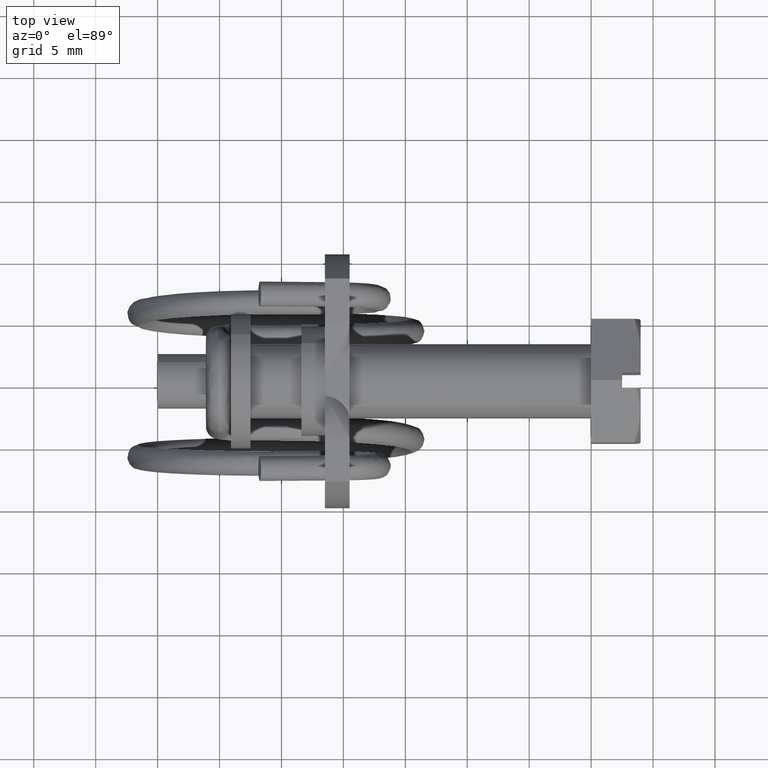
[diagram: clean part render]
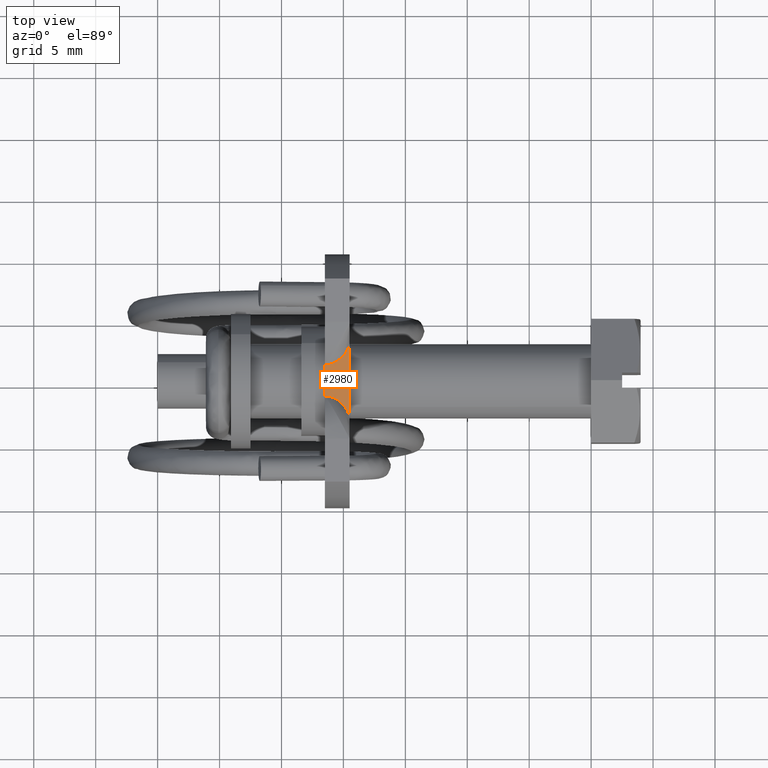
[diagram: same view with one face highlighted and labeled with its STEP entity id]
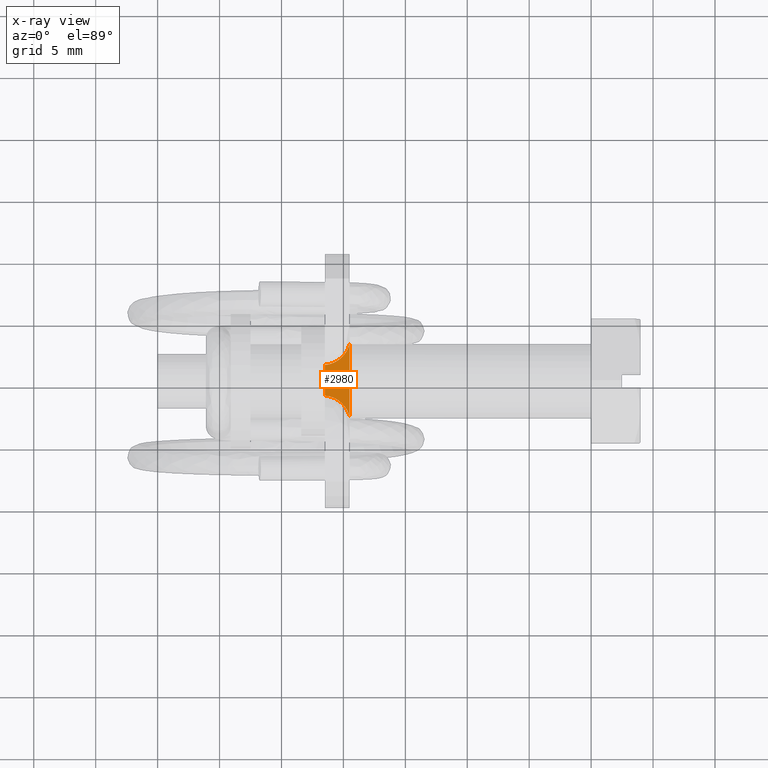
[diagram: x-ray of the same camera — body ghosted, the highlighted face saturated]
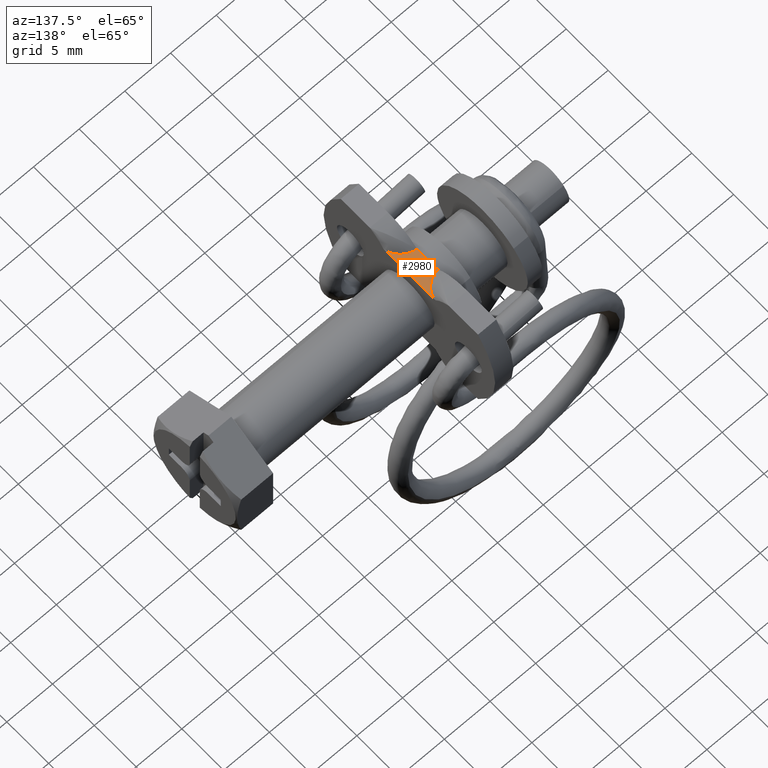
[diagram: same view with one face highlighted and labeled with its STEP entity id]
A machine part, top view. The second image highlights one B-rep face of the part: STEP entity #2980.
The next image is the same camera in x-ray: the body ghosted, the highlighted face saturated — about 0% of this face is hidden behind the body in this view.
A second angle (auxiliary view) of the same face is appended — the face is thin or edge-on in the first view.
In plain terms, the highlighted face is a freeform B-spline surface patch.
Its self-contained STEP definition (entity closure, byte-faithful):
#2890=CARTESIAN_POINT('',(-21.500000000008750,-1.249999999999660,4.700000000000100));
#2891=VERTEX_POINT('',#2890);
#2919=CARTESIAN_POINT('',(-21.599899996132368,-3.443173036461801,4.700000000000100));
#2920=CARTESIAN_POINT('',(-19.400099950240900,-3.443173036461801,4.700000000000100));
#2921=CARTESIAN_POINT('',(-21.599899996132368,3.443173204391921,4.700000000000100));
#2922=CARTESIAN_POINT('',(-19.400099950240900,3.443173204391921,4.700000000000100));
#2923=B_SPLINE_SURFACE_WITH_KNOTS('',1,1,((#2919,#2921),(#2920,#2922)),.UNSPECIFIED.,.F.,.F.,.U.,(2,2),(2,2),(0.0,2.199800045891461),(0.0,6.886346240853721),.UNSPECIFIED.);
#2924=CARTESIAN_POINT('',(-19.500000000008701,3.130441902533635,4.700000000000100));
#2925=VERTEX_POINT('',#2924);
#2926=CARTESIAN_POINT('',(-19.500000000008701,-3.130441902533505,4.700000000000100));
#2927=VERTEX_POINT('',#2926);
#2928=CARTESIAN_POINT('',(-19.500000000008701,3.130441902533635,4.700000000000100));
#2929=CARTESIAN_POINT('',(-19.500000000008701,-3.130441902533505,4.700000000000100));
#2930=QUASI_UNIFORM_CURVE('',1,(#2928,#2929),.UNSPECIFIED.,.F.,.U.);
#2931=EDGE_CURVE('',#2925,#2927,#2930,.T.);
#2932=ORIENTED_EDGE('',*,*,#2931,.F.);
#2933=CARTESIAN_POINT('',(-21.500000000008750,1.249999999999802,4.700000000000100));
#2934=VERTEX_POINT('',#2933);
#2935=CARTESIAN_POINT('',(-19.500000000008701,3.130441902533635,4.700000000000100));
#2936=CARTESIAN_POINT('',(-19.500004352341140,3.068100980815020,4.700000000000101));
#2937=CARTESIAN_POINT('',(-19.510389552563328,2.951373411741420,4.700000000000092));
#2938=CARTESIAN_POINT('',(-19.553008227554891,2.761012838152521,4.700000000000115));
#2939=CARTESIAN_POINT('',(-19.614004325583458,2.592089633766961,4.700000000000097));
#2940=CARTESIAN_POINT('',(-19.674422388716721,2.465472361373045,4.700000000000105));
#2941=CARTESIAN_POINT('',(-19.762915891787340,2.300720082233770,4.700000000000085));
#2942=CARTESIAN_POINT('',(-19.906998758128012,2.086738260976690,4.700000000000116));
#2943=CARTESIAN_POINT('',(-20.156889138341509,1.817757223498983,4.700000000000127));
#2944=CARTESIAN_POINT('',(-20.438326355290169,1.594158822725667,4.700000000000016));
#2945=CARTESIAN_POINT('',(-20.757830459293061,1.413017988398590,4.700000000000253));
#2946=CARTESIAN_POINT('',(-21.000715114073358,1.325503336942051,4.700000000000049));
#2947=CARTESIAN_POINT('',(-21.190252004341200,1.280456844201336,4.700000000000063));
#2948=CARTESIAN_POINT('',(-21.320865973943381,1.257717031589220,4.700000000000323));
#2949=CARTESIAN_POINT('',(-21.437669488401479,1.249984917915510,4.699999999999935));
#2950=CARTESIAN_POINT('',(-21.500000000008750,1.249999999999802,4.700000000000100));
#2951=B_SPLINE_CURVE_WITH_KNOTS('',3,(#2935,#2936,#2937,#2938,#2939,#2940,#2941,#2942,#2943,#2944,#2945,#2946,#2947,#2948,#2949,#2950),.UNSPECIFIED.,.F.,.U.,(4,1,1,1,1,1,1,1,1,1,1,1,1,4),(-0.000025322425239,0.186942743096417,0.350535722073370,0.584262078442476,0.724489526078991,0.771229785517811,1.145182191595193,1.495755623171349,1.869702708813643,2.220285255191857,2.594229639900803,2.640968265993716,2.804567950792364,2.991537284997472),.UNSPECIFIED.);
#2952=EDGE_CURVE('',#2925,#2934,#2951,.T.);
#2953=ORIENTED_EDGE('',*,*,#2952,.T.);
#2954=CARTESIAN_POINT('',(-21.500000000008750,1.249999999999802,4.700000000000100));
#2955=CARTESIAN_POINT('',(-21.500000000008750,-1.249999999999660,4.700000000000100));
#2956=QUASI_UNIFORM_CURVE('',1,(#2954,#2955),.UNSPECIFIED.,.F.,.U.);
#2957=EDGE_CURVE('',#2934,#2891,#2956,.T.);
#2958=ORIENTED_EDGE('',*,*,#2957,.T.);
#2959=CARTESIAN_POINT('',(-21.500000000008750,-1.249999999999660,4.700000000000100));
#2960=CARTESIAN_POINT('',(-21.429875083312869,-1.249988458692331,4.700000000000098));
#2961=CARTESIAN_POINT('',(-21.313085707697240,-1.258658066926889,4.700000000000101));
#2962=CARTESIAN_POINT('',(-21.182670497758199,-1.282259216078546,4.700000000000099));
#2963=CARTESIAN_POINT('',(-21.000711467646429,-1.325504438911733,4.700000000000109));
#2964=CARTESIAN_POINT('',(-20.757821368182849,-1.413017895104844,4.700000000000083));
#2965=CARTESIAN_POINT('',(-20.438326583051960,-1.594165695391335,4.700000000000149));
#2966=CARTESIAN_POINT('',(-20.156881586091341,-1.817756382331220,4.699999999999960));
#2967=CARTESIAN_POINT('',(-19.906997672192219,-2.086743476555350,4.700000000000321));
#2968=CARTESIAN_POINT('',(-19.762915306690569,-2.300725947239185,4.699999999999957));
#2969=CARTESIAN_POINT('',(-19.674420481246550,-2.465472791938232,4.700000000000117));
#2970=CARTESIAN_POINT('',(-19.617354690156318,-2.585063306225524,4.700000000000147));
#2971=CARTESIAN_POINT('',(-19.552674994316959,-2.760841236098282,4.700000000000024));
#2972=CARTESIAN_POINT('',(-19.509736109091008,-2.951341224234611,4.700000000000250));
#2973=CARTESIAN_POINT('',(-19.499994189418839,-3.075904759311877,4.699999999999879));
#2974=CARTESIAN_POINT('',(-19.500000000008701,-3.130441902533505,4.700000000000100));
#2975=B_SPLINE_CURVE_WITH_KNOTS('',3,(#2959,#2960,#2961,#2962,#2963,#2964,#2965,#2966,#2967,#2968,#2969,#2970,#2971,#2972,#2973,#2974),.UNSPECIFIED.,.F.,.U.,(4,1,1,1,1,1,1,1,1,1,1,1,1,4),(-0.000077143033349,0.210270885782681,0.350497684083383,0.397242387279782,0.771195425868956,1.121781980325735,1.495734886611954,1.846314841730049,2.220271994895277,2.267013532253963,2.407243358585871,2.617593294923031,2.827951260624283,2.991537279747978),.UNSPECIFIED.);
#2976=EDGE_CURVE('',#2891,#2927,#2975,.T.);
#2977=ORIENTED_EDGE('',*,*,#2976,.T.);
#2978=EDGE_LOOP('',(#2932,#2953,#2958,#2977));
#2979=FACE_OUTER_BOUND('',#2978,.T.);
#2980=ADVANCED_FACE('',(#2979),#2923,.T.);